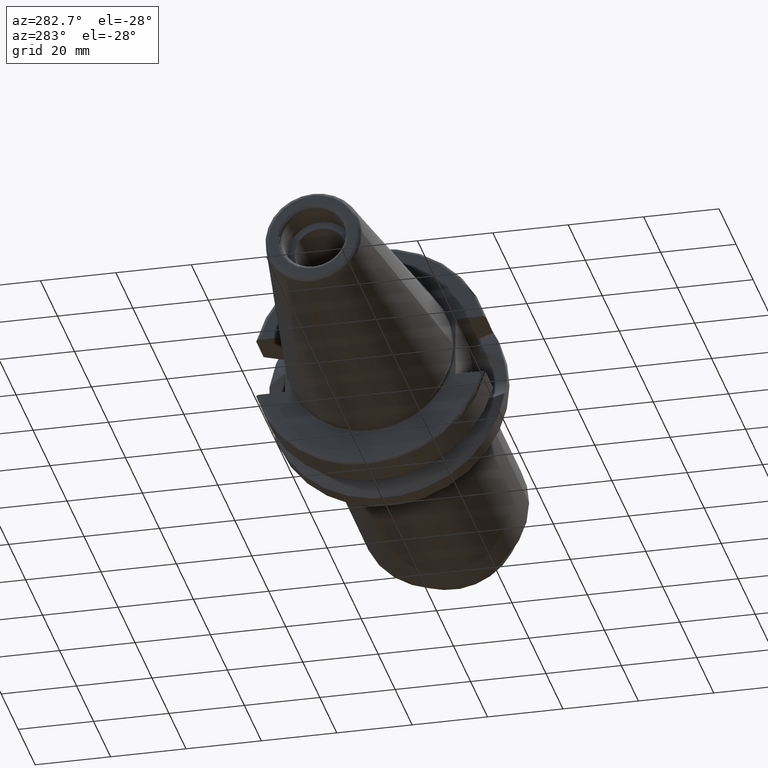
[diagram: clean part render]
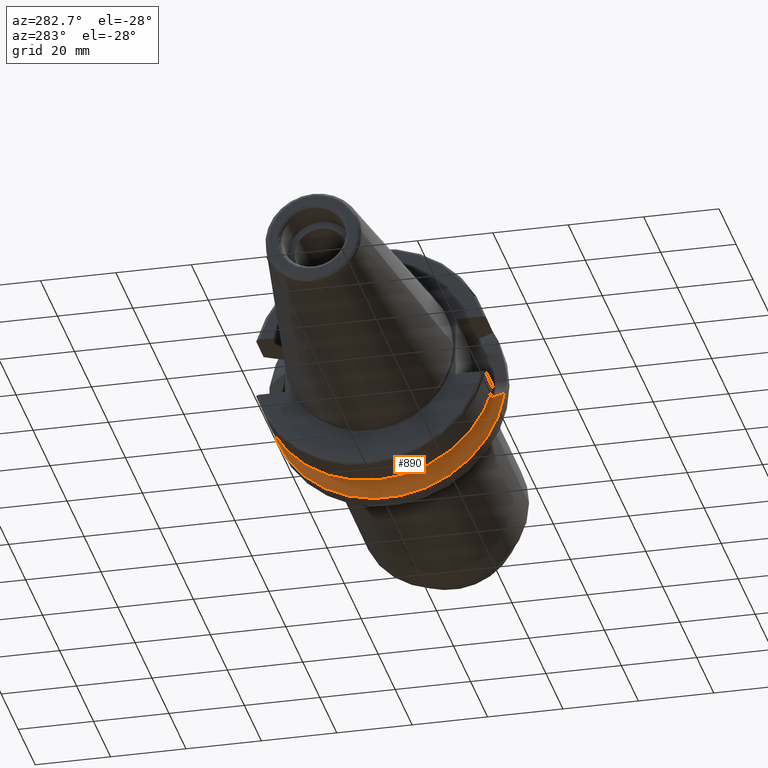
[diagram: same view with one face highlighted and labeled with its STEP entity id]
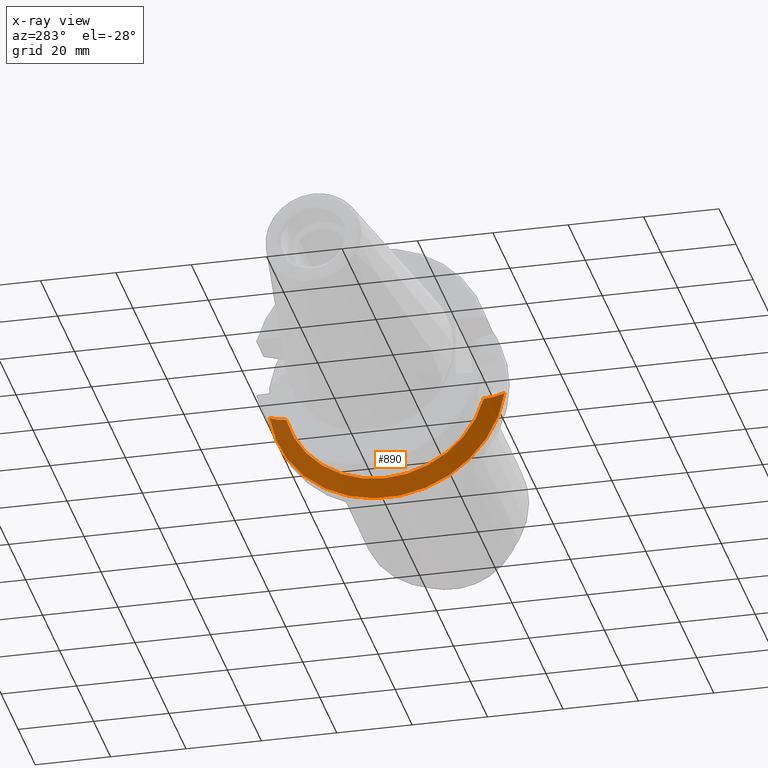
[diagram: x-ray of the same camera — body ghosted, the highlighted face saturated]
A machine part, auxiliary view. The second image highlights one B-rep face of the part: STEP entity #890.
The next image is the same camera in x-ray: the body ghosted, the highlighted face saturated — about 5% of this face is hidden behind the body in this view.
In plain terms, the highlighted conical surface has half-angle 60.125 deg.
Its self-contained STEP definition (entity closure, byte-faithful):
#22=CONICAL_SURFACE('',#999,29.2970358274569,1.0493792127616);
#34=B_SPLINE_CURVE_WITH_KNOTS('',3,(#1524,#1525,#1526,#1527,#1528,#1529),
 .UNSPECIFIED.,.F.,.F.,(4,2,4),(3.12975744792551,3.6269928875698,3.7084873746139),
 .UNSPECIFIED.);
#42=B_SPLINE_CURVE_WITH_KNOTS('',3,(#1640,#1641,#1642,#1643,#1644,#1645),
 .UNSPECIFIED.,.F.,.F.,(4,2,4),(1.46421027899563,1.54570476603974,2.04294020568402),
 .UNSPECIFIED.);
#207=FACE_OUTER_BOUND('',#268,.T.);
#268=EDGE_LOOP('',(#707,#708,#709,#710));
#331=CIRCLE('',#996,31.5);
#334=CIRCLE('',#1000,27.0940716549138);
#396=VERTEX_POINT('',#1521);
#397=VERTEX_POINT('',#1523);
#419=VERTEX_POINT('',#1622);
#421=VERTEX_POINT('',#1638);
#497=EDGE_CURVE('',#397,#396,#34,.T.);
#523=EDGE_CURVE('',#397,#419,#331,.T.);
#527=EDGE_CURVE('',#396,#421,#334,.T.);
#528=EDGE_CURVE('',#421,#419,#42,.T.);
#707=ORIENTED_EDGE('',*,*,#497,.T.);
#708=ORIENTED_EDGE('',*,*,#527,.T.);
#709=ORIENTED_EDGE('',*,*,#528,.T.);
#710=ORIENTED_EDGE('',*,*,#523,.F.);
#890=ADVANCED_FACE('',(#207),#22,.T.);
#996=AXIS2_PLACEMENT_3D('',#1623,#1194,#1195);
#999=AXIS2_PLACEMENT_3D('',#1637,#1200,#1201);
#1000=AXIS2_PLACEMENT_3D('',#1639,#1202,#1203);
#1194=DIRECTION('center_axis',(1.,0.,0.));
#1195=DIRECTION('ref_axis',(0.,0.,-1.));
#1200=DIRECTION('center_axis',(1.,0.,0.));
#1201=DIRECTION('ref_axis',(0.,1.,0.));
#1202=DIRECTION('center_axis',(1.,0.,0.));
#1203=DIRECTION('ref_axis',(0.,0.,-1.));
#1521=CARTESIAN_POINT('',(19.1,-26.201311395455,-6.89782574439221));
#1523=CARTESIAN_POINT('',(21.6309636926618,-31.1782420264945,-4.49079326370462));
#1524=CARTESIAN_POINT('Ctrl Pts',(21.6309636926618,-31.1782420264945,-4.49079326370461));
#1525=CARTESIAN_POINT('Ctrl Pts',(20.9728756148302,-29.8797957262939,-5.46983244373119));
#1526=CARTESIAN_POINT('Ctrl Pts',(20.1784155384866,-28.3157123387483,-6.1823136897693));
#1527=CARTESIAN_POINT('Ctrl Pts',(19.3406963650696,-26.6728819297427,-6.74867108656043));
#1528=CARTESIAN_POINT('Ctrl Pts',(19.2210929544554,-26.438473693351,-6.82497151762397));
#1529=CARTESIAN_POINT('Ctrl Pts',(19.1,-26.201311395455,-6.89782574439222));
#1622=CARTESIAN_POINT('',(21.6309636926618,31.1782420264945,-4.49079326370462));
#1623=CARTESIAN_POINT('Origin',(21.6309636926618,0.,0.));
#1637=CARTESIAN_POINT('Origin',(20.3654818463309,0.,0.));
#1638=CARTESIAN_POINT('',(19.1,26.201311395455,-6.89782574439221));
#1639=CARTESIAN_POINT('Origin',(19.1,0.,0.));
#1640=CARTESIAN_POINT('Ctrl Pts',(19.1,26.201311395455,-6.89782574439221));
#1641=CARTESIAN_POINT('Ctrl Pts',(19.2210929544554,26.438473693351,-6.82497151762396));
#1642=CARTESIAN_POINT('Ctrl Pts',(19.3406963650696,26.6728819297427,-6.74867108656043));
#1643=CARTESIAN_POINT('Ctrl Pts',(20.1784155384866,28.3157123387483,-6.1823136897693));
#1644=CARTESIAN_POINT('Ctrl Pts',(20.9728756148302,29.8797957262938,-5.46983244373119));
#1645=CARTESIAN_POINT('Ctrl Pts',(21.6309636926618,31.1782420264945,-4.49079326370462));